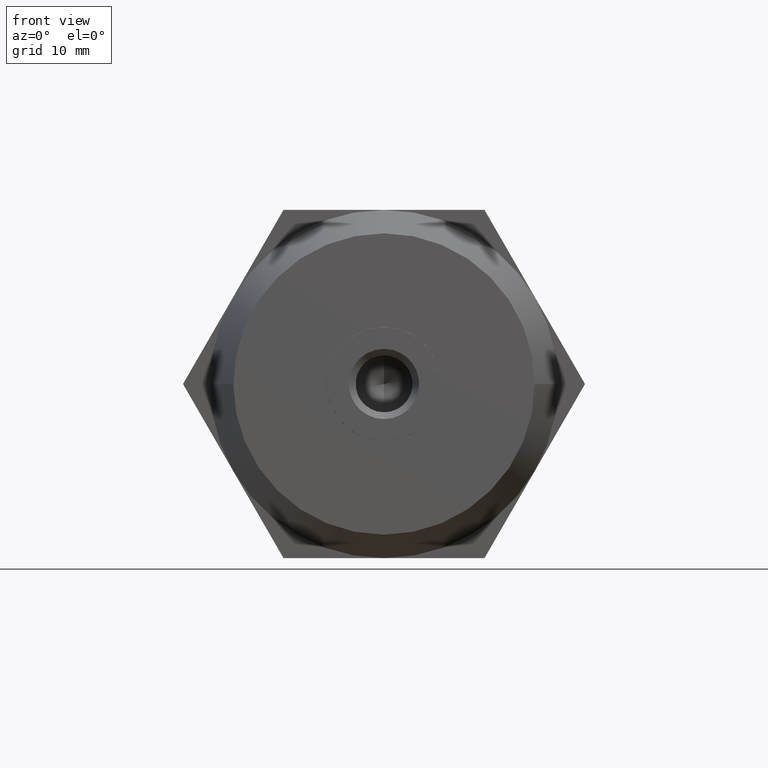
[diagram: clean part render]
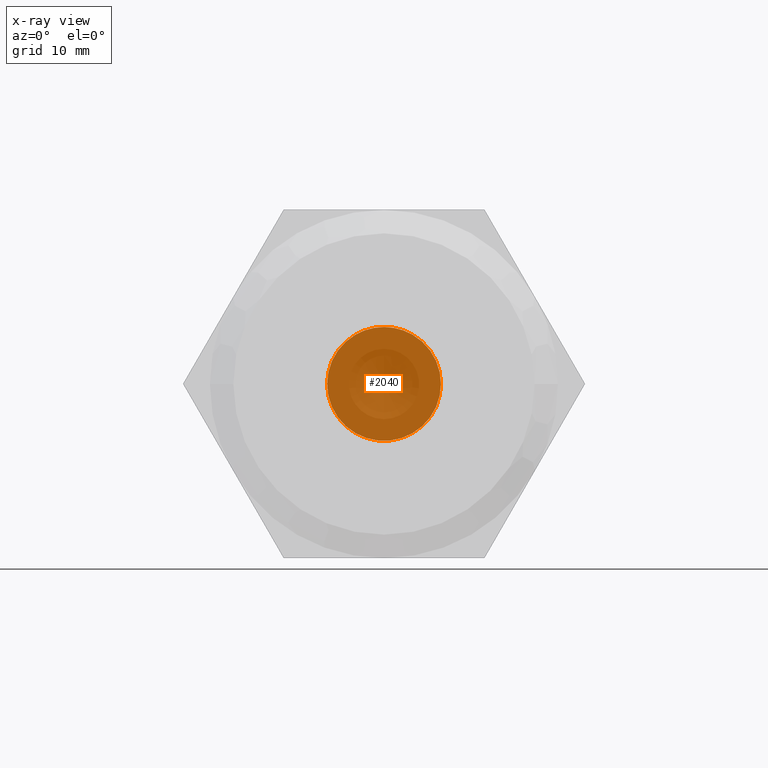
[diagram: x-ray — body ghosted, one internal face saturated and labeled with its STEP entity id]
A machine part, front view, then the same camera in x-ray: the body is ghosted and one INTERNAL B-rep face — a face not visible from any outside direction — is saturated and labeled: STEP entity #2040.
In plain terms, the highlighted planar face has unit normal (0, 1, 0).
Its self-contained STEP definition (entity closure, byte-faithful):
#67 = CARTESIAN_POINT ( 'NONE',  ( 0.0000000000000000000, 20.51000000000000200, 0.0000000000000000000 ) ) ;
#72 = AXIS2_PLACEMENT_3D ( 'NONE', #67, #3428, #3715 ) ;
#179 = AXIS2_PLACEMENT_3D ( 'NONE', #3880, #527, #806 ) ;
#343 = DIRECTION ( 'NONE',  ( -0.0000000000000000000, -1.000000000000000000, -0.0000000000000000000 ) ) ;
#365 = EDGE_CURVE ( 'NONE', #574, #1418, #2974, .T. ) ;
#389 = EDGE_CURVE ( 'NONE', #3336, #574, #1138, .T. ) ;
#498 = EDGE_CURVE ( 'NONE', #543, #3336, #1856, .T. ) ;
#527 = DIRECTION ( 'NONE',  ( -0.0000000000000000000, -1.000000000000000000, -0.0000000000000000000 ) ) ;
#543 = VERTEX_POINT ( 'NONE', #1380 ) ;
#560 = AXIS2_PLACEMENT_3D ( 'NONE', #1825, #3069, #1536 ) ;
#574 = VERTEX_POINT ( 'NONE', #2913 ) ;
#615 = ORIENTED_EDGE ( 'NONE', *, *, #389, .F. ) ;
#660 = DIRECTION ( 'NONE',  ( 1.776356839400250500E-015, 0.0000000000000000000, 1.000000000000000000 ) ) ;
#674 = ORIENTED_EDGE ( 'NONE', *, *, #365, .F. ) ;
#765 = CARTESIAN_POINT ( 'NONE',  ( 0.0000000000000000000, 20.51000000000000200, 8.500000000000000000 ) ) ;
#771 = CARTESIAN_POINT ( 'NONE',  ( 4.250000000000060400, 20.50999999999895000, -7.361215932167689300 ) ) ;
#806 = DIRECTION ( 'NONE',  ( 5.329070518200752200E-015, 0.0000000000000000000, 1.000000000000000000 ) ) ;
#912 = DIRECTION ( 'NONE',  ( 0.0000000000000000000, 0.0000000000000000000, 1.000000000000000000 ) ) ;
#1003 = ORIENTED_EDGE ( 'NONE', *, *, #1118, .F. ) ;
#1055 = CARTESIAN_POINT ( 'NONE',  ( 4.249999999999935200, 20.50999999999895000, 7.361215932167770100 ) ) ;
#1062 = EDGE_CURVE ( 'NONE', #1418, #1104, #3384, .T. ) ;
#1104 = VERTEX_POINT ( 'NONE', #3352 ) ;
#1118 = EDGE_CURVE ( 'NONE', #1104, #2089, #2826, .T. ) ;
#1138 = CIRCLE ( 'NONE', #1893, 8.500000000000000000 ) ;
#1257 = DIRECTION ( 'NONE',  ( 0.0000000000000000000, 0.0000000000000000000, 1.000000000000000000 ) ) ;
#1289 = PLANE ( 'NONE',  #72 ) ;
#1380 = CARTESIAN_POINT ( 'NONE',  ( -4.250000000000000000, 20.51000000000000200, 7.361215932167730200 ) ) ;
#1418 = VERTEX_POINT ( 'NONE', #771 ) ;
#1501 = ORIENTED_EDGE ( 'NONE', *, *, #2950, .F. ) ;
#1519 = DIRECTION ( 'NONE',  ( 0.0000000000000000000, 0.0000000000000000000, 1.000000000000000000 ) ) ;
#1536 = DIRECTION ( 'NONE',  ( -1.776356839400250500E-015, 0.0000000000000000000, 1.000000000000000000 ) ) ;
#1556 = ORIENTED_EDGE ( 'NONE', *, *, #1062, .F. ) ;
#1558 = CARTESIAN_POINT ( 'NONE',  ( 0.0000000000000000000, 20.51000000000000200, 0.0000000000000000000 ) ) ;
#1671 = CARTESIAN_POINT ( 'NONE',  ( 0.0000000000000000000, 20.51000000000000200, 0.0000000000000000000 ) ) ;
#1795 = AXIS2_PLACEMENT_3D ( 'NONE', #3687, #343, #1519 ) ;
#1825 = CARTESIAN_POINT ( 'NONE',  ( 0.0000000000000000000, 20.51000000000000200, 0.0000000000000000000 ) ) ;
#1847 = DIRECTION ( 'NONE',  ( -0.0000000000000000000, -1.000000000000000000, -0.0000000000000000000 ) ) ;
#1856 = CIRCLE ( 'NONE', #2234, 8.500000000000000000 ) ;
#1893 = AXIS2_PLACEMENT_3D ( 'NONE', #2163, #1847, #1257 ) ;
#2040 = ADVANCED_FACE ( 'NONE', ( #2584 ), #1289, .T. ) ;
#2064 = VERTEX_POINT ( 'NONE', #765 ) ;
#2089 = VERTEX_POINT ( 'NONE', #1055 ) ;
#2163 = CARTESIAN_POINT ( 'NONE',  ( 0.0000000000000000000, 20.51000000000000200, 0.0000000000000000000 ) ) ;
#2172 = DIRECTION ( 'NONE',  ( -0.0000000000000000000, -1.000000000000000000, -0.0000000000000000000 ) ) ;
#2234 = AXIS2_PLACEMENT_3D ( 'NONE', #1671, #2966, #2638 ) ;
#2422 = DIRECTION ( 'NONE',  ( -0.0000000000000000000, -1.000000000000000000, -0.0000000000000000000 ) ) ;
#2521 = EDGE_LOOP ( 'NONE', ( #2963, #1003, #1556, #674, #615, #3760, #1501 ) ) ;
#2525 = AXIS2_PLACEMENT_3D ( 'NONE', #1558, #2172, #660 ) ;
#2584 = FACE_OUTER_BOUND ( 'NONE', #2521, .T. ) ;
#2638 = DIRECTION ( 'NONE',  ( 0.0000000000000000000, 0.0000000000000000000, 1.000000000000000000 ) ) ;
#2764 = CARTESIAN_POINT ( 'NONE',  ( 0.0000000000000000000, 20.51000000000000200, 0.0000000000000000000 ) ) ;
#2826 = CIRCLE ( 'NONE', #1795, 8.500000000000000000 ) ;
#2873 = EDGE_CURVE ( 'NONE', #2089, #2064, #3195, .T. ) ;
#2913 = CARTESIAN_POINT ( 'NONE',  ( -4.249999999999935200, 20.50999999999895000, -7.361215932167759500 ) ) ;
#2950 = EDGE_CURVE ( 'NONE', #2064, #543, #3519, .T. ) ;
#2963 = ORIENTED_EDGE ( 'NONE', *, *, #2873, .F. ) ;
#2966 = DIRECTION ( 'NONE',  ( -0.0000000000000000000, -1.000000000000000000, -0.0000000000000000000 ) ) ;
#2974 = CIRCLE ( 'NONE', #2525, 8.500000000000000000 ) ;
#3069 = DIRECTION ( 'NONE',  ( -0.0000000000000000000, -1.000000000000000000, -0.0000000000000000000 ) ) ;
#3195 = CIRCLE ( 'NONE', #179, 8.500000000000000000 ) ;
#3336 = VERTEX_POINT ( 'NONE', #3853 ) ;
#3352 = CARTESIAN_POINT ( 'NONE',  ( 8.500000000000000000, 20.51000000000000200, -3.469446951953615000E-015 ) ) ;
#3384 = CIRCLE ( 'NONE', #560, 8.500000000000000000 ) ;
#3428 = DIRECTION ( 'NONE',  ( 0.0000000000000000000, 1.000000000000000000, 0.0000000000000000000 ) ) ;
#3519 = CIRCLE ( 'NONE', #3589, 8.500000000000000000 ) ;
#3589 = AXIS2_PLACEMENT_3D ( 'NONE', #2764, #2422, #912 ) ;
#3687 = CARTESIAN_POINT ( 'NONE',  ( 0.0000000000000000000, 20.51000000000000200, 0.0000000000000000000 ) ) ;
#3715 = DIRECTION ( 'NONE',  ( 0.0000000000000000000, 0.0000000000000000000, 1.000000000000000000 ) ) ;
#3760 = ORIENTED_EDGE ( 'NONE', *, *, #498, .F. ) ;
#3853 = CARTESIAN_POINT ( 'NONE',  ( -8.500000000000000000, 20.51000000000000200, 0.0000000000000000000 ) ) ;
#3880 = CARTESIAN_POINT ( 'NONE',  ( 0.0000000000000000000, 20.51000000000000200, 0.0000000000000000000 ) ) ;